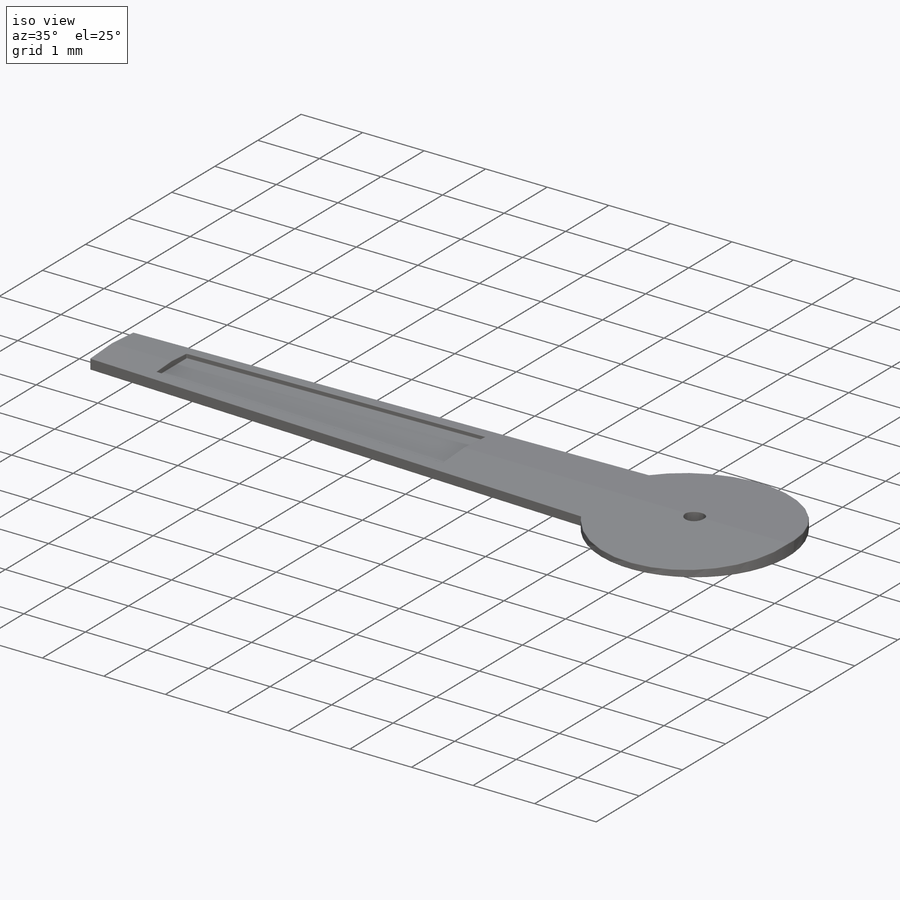
[diagram: iso view]
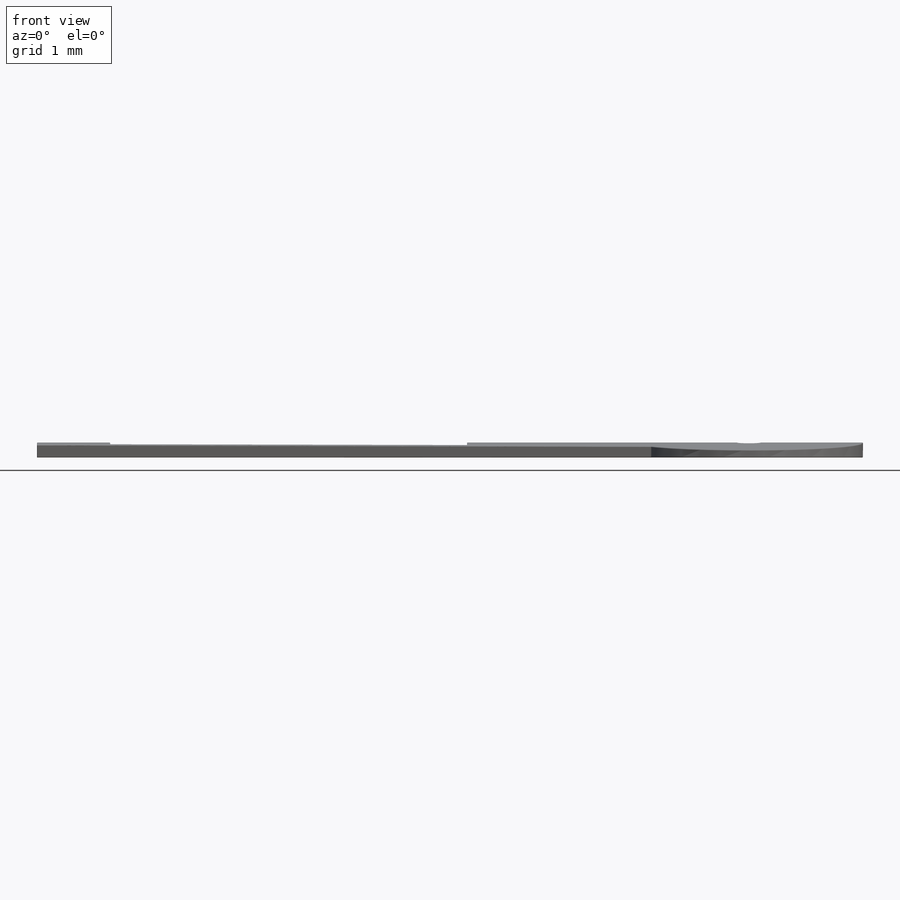
[diagram: front view]
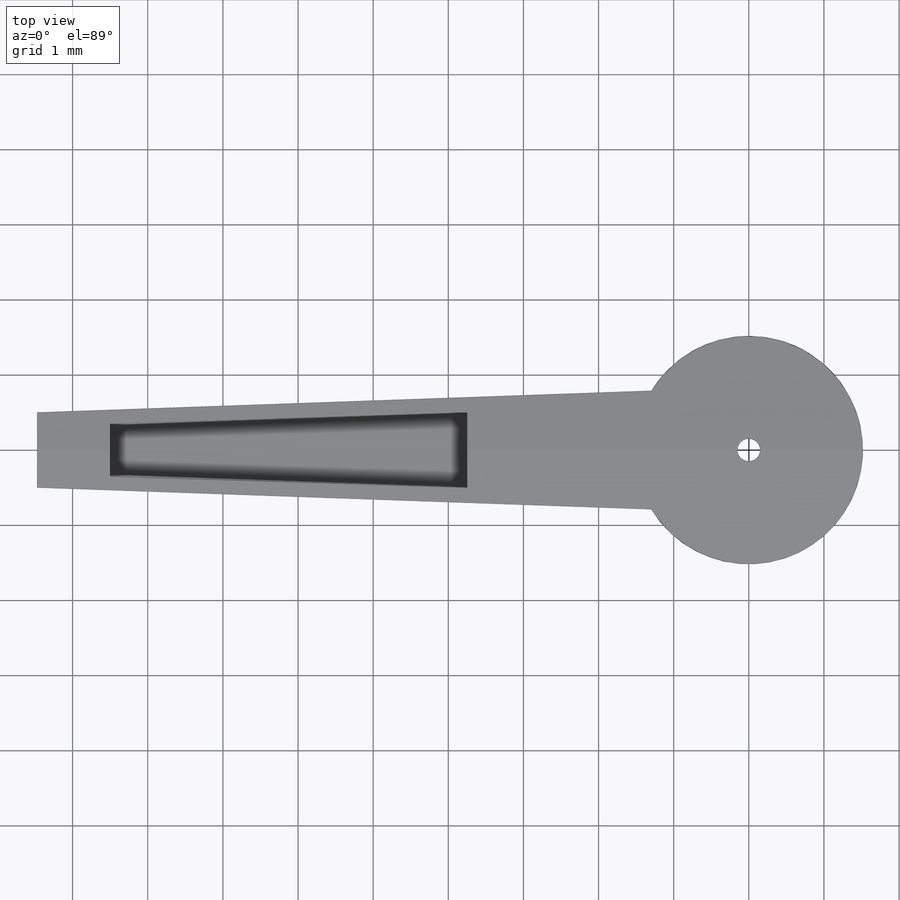
[diagram: top view]
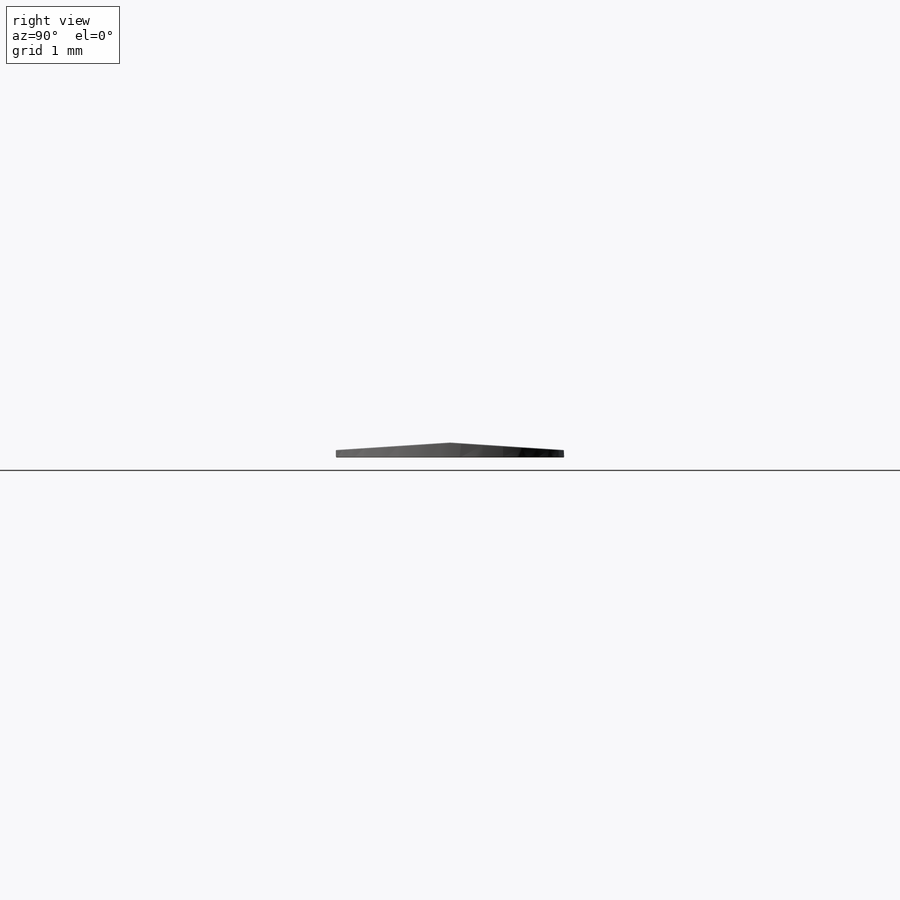
[diagram: right view]
SOLIDWORKS PART (.sldprt)
format: sldprt  version: not decoded by parser v0  size: 313,856 bytes
history: native  units: mm
features: sketch x4, extrude x2, material x1, cut_extrude x1, fillet x1 (+11 scaffold rows collapsed)
feature tree (20):
  scaffold x11  (default folders/planes/origin — collapsed)
  material  "Material <not specified>"
  sketch  "Sketch1"
  sketch  "Sketch2"  dims[D1=1.0mm D2=0.5mm D3=0.8mm D4=0.8mm D5=1.0mm D6=1.0mm D7=8.5mm D8=3.75mm D9=0.5mm D10=1.0mm D11=0.7mm D12=0.35mm]
  extrude  "Boss-Extrude1"  Depth=0.2mm
  sketch  "Sketch3"
  extrude  "Boss-Extrude2"  Depth=0.1mm
  sketch  "Sketch4"
  cut_extrude  "Cut-Extrude1"  Depth=70.1mm
  fillet  "Fillet1"  Radius=0.01mm
decode coverage: 5 of 8 modeling features carry decoded parameters
note: suppression state not decoded; provenance and decode notes live in map.json
